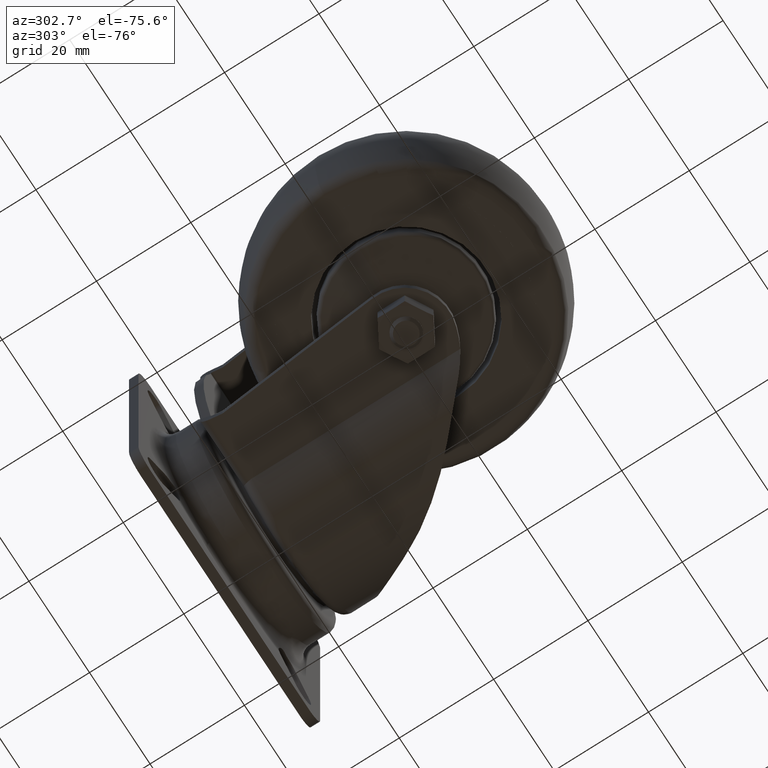
[diagram: clean part render]
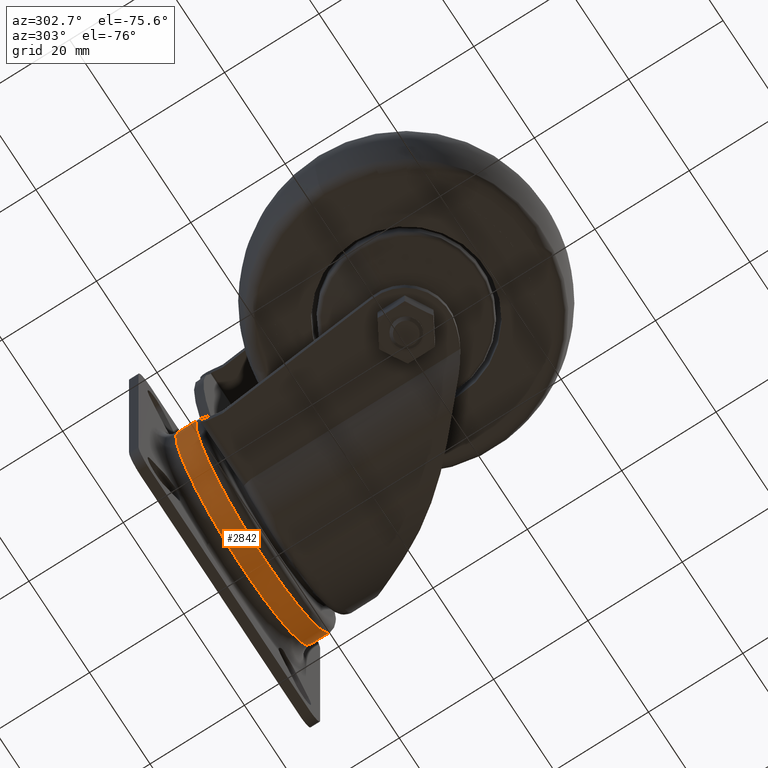
[diagram: same view with one face highlighted and labeled with its STEP entity id]
A machine part, auxiliary view. The second image highlights one B-rep face of the part: STEP entity #2842.
In plain terms, the highlighted cylindrical surface (bore or boss wall) has radius 22.36 mm, axis along (0, -1, 0).
Its self-contained STEP definition (entity closure, byte-faithful):
#250=LINE('',#5389,#381);
#381=VECTOR('',#4185,22.3600000000001);
#449=CYLINDRICAL_SURFACE('',#3386,22.3600000000001);
#705=FACE_OUTER_BOUND('',#910,.T.);
#910=EDGE_LOOP('',(#2446,#2447,#2448,#2449));
#1117=CIRCLE('',#3385,22.3600000000001);
#1118=CIRCLE('',#3387,22.3600000000001);
#1410=VERTEX_POINT('',#5384);
#1411=VERTEX_POINT('',#5388);
#1779=EDGE_CURVE('',#1410,#1410,#1117,.T.);
#1780=EDGE_CURVE('',#1410,#1411,#250,.T.);
#1781=EDGE_CURVE('',#1411,#1411,#1118,.T.);
#2446=ORIENTED_EDGE('',*,*,#1779,.F.);
#2447=ORIENTED_EDGE('',*,*,#1780,.T.);
#2448=ORIENTED_EDGE('',*,*,#1781,.T.);
#2449=ORIENTED_EDGE('',*,*,#1780,.F.);
#2842=ADVANCED_FACE('',(#705),#449,.T.);
#3385=AXIS2_PLACEMENT_3D('',#5386,#4181,#4182);
#3386=AXIS2_PLACEMENT_3D('',#5387,#4183,#4184);
#3387=AXIS2_PLACEMENT_3D('',#5390,#4186,#4187);
#4181=DIRECTION('center_axis',(0.,-1.,0.));
#4182=DIRECTION('ref_axis',(0.,0.,-1.));
#4183=DIRECTION('center_axis',(0.,-1.,0.));
#4184=DIRECTION('ref_axis',(0.,0.,-1.));
#4185=DIRECTION('',(0.,1.,0.));
#4186=DIRECTION('center_axis',(0.,-1.,0.));
#4187=DIRECTION('ref_axis',(0.,0.,-1.));
#5384=CARTESIAN_POINT('',(21.,43.7350000000005,22.3600000000001));
#5386=CARTESIAN_POINT('Origin',(21.,43.7350000000005,0.));
#5387=CARTESIAN_POINT('Origin',(21.,32.3379999999999,0.));
#5388=CARTESIAN_POINT('',(21.,48.,22.3600000000001));
#5389=CARTESIAN_POINT('',(21.,32.3379999999999,22.3600000000001));
#5390=CARTESIAN_POINT('Origin',(21.,48.,0.));